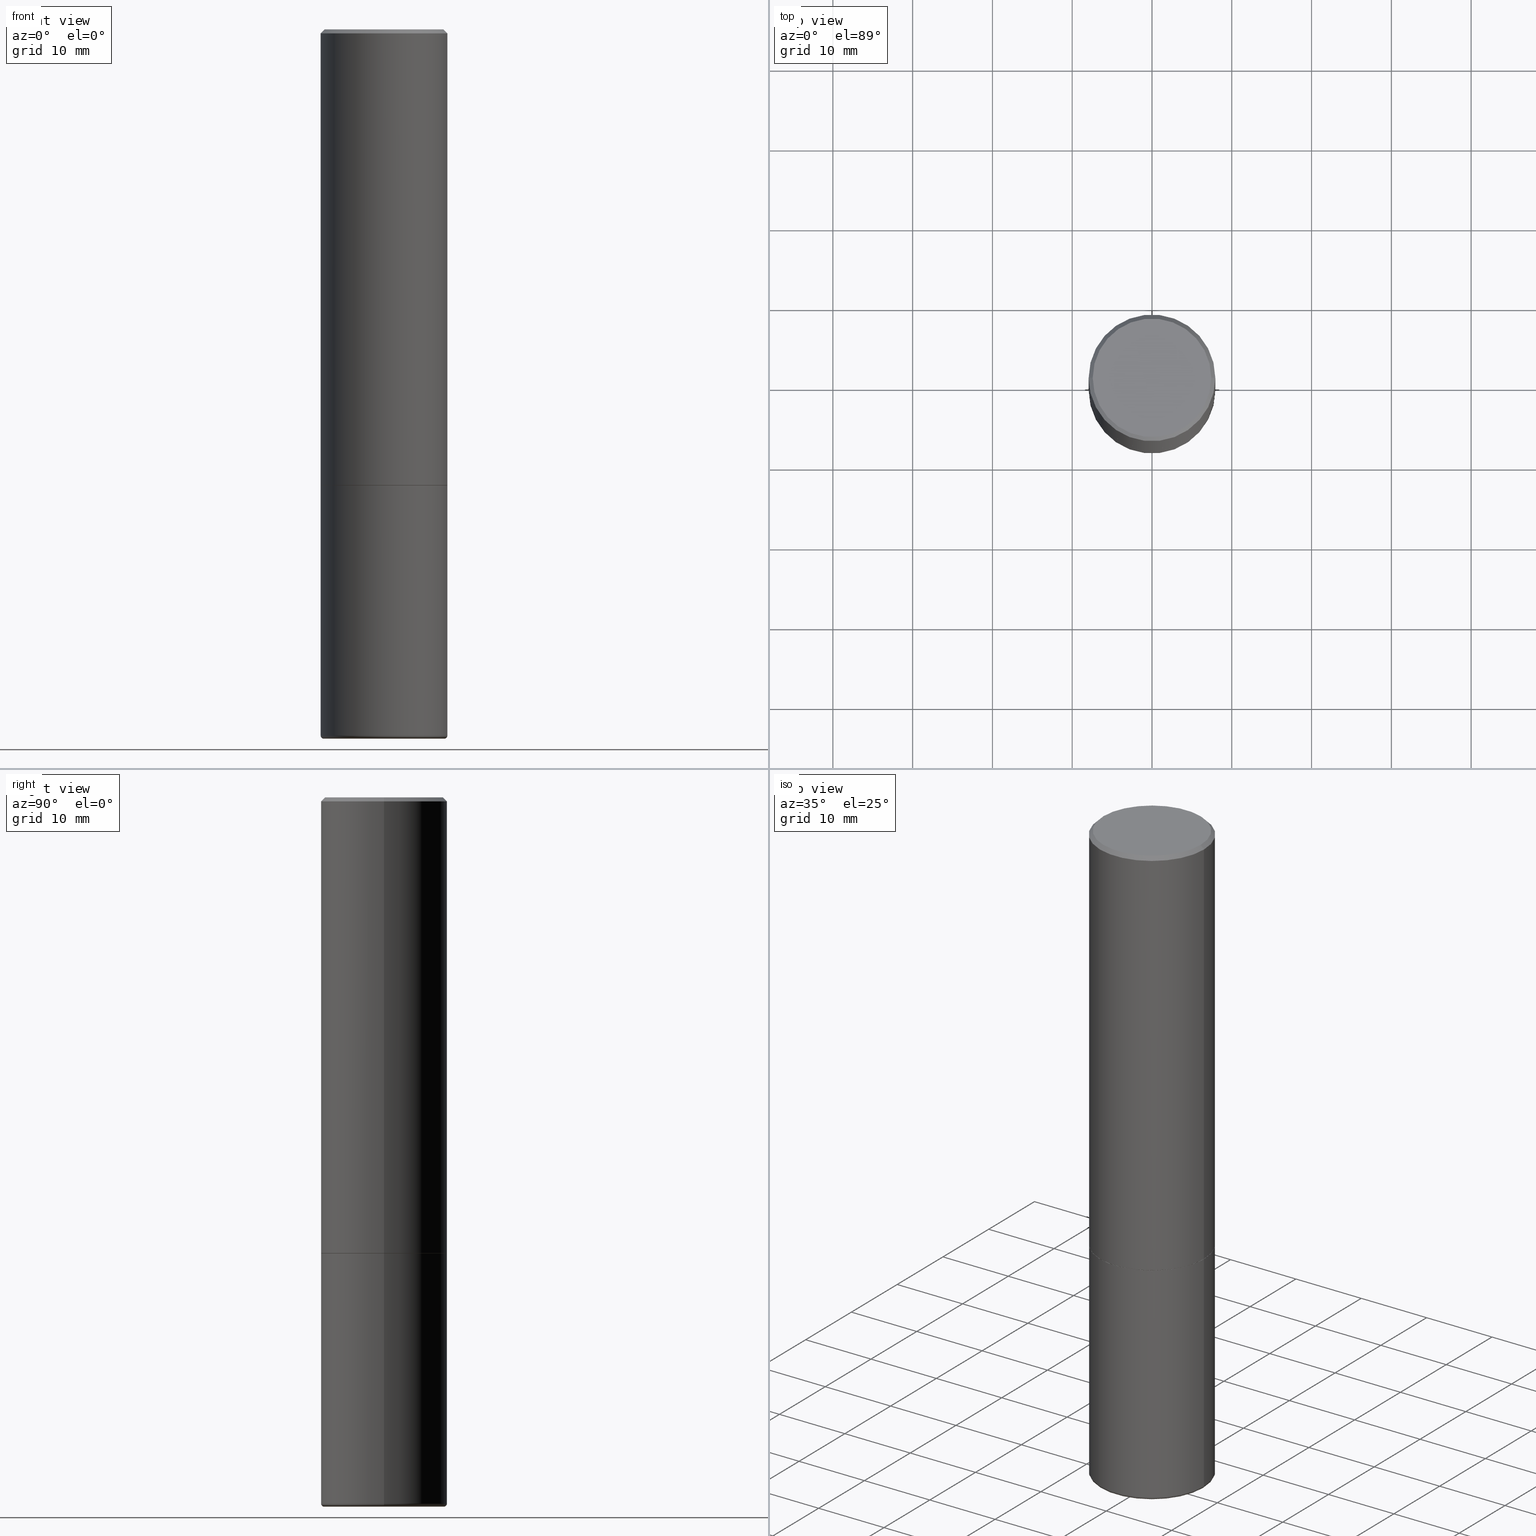
[diagram: canonical four-view strip — front | top / right | iso, engineering-drawing reading convention]
A machine part, canonical four-view strip (front | top / right | iso — engineering-drawing reading convention). The complete STEP part file that produces these views, byte-faithful:
ISO-10303-21;
HEADER;
FILE_DESCRIPTION (( 'STEP AP203' ),
    '1' );
FILE_NAME ('38074.STEP',
    '2023-03-22T20:15:38',
    ( '' ),
    ( '' ),
    'SwSTEP 2.0',
    'SolidWorks 2022',
    '' );
FILE_SCHEMA (( 'CONFIG_CONTROL_DESIGN' ));
ENDSEC;

DATA;
#1 = DIRECTION ( 'NONE',  ( 1.000000000000000000, -6.982962677686265133E-15, 0.000000000000000000 ) ) ;
#2 = DIRECTION ( 'NONE',  ( -1.000000000000000000, 7.105427357600985293E-15, 0.000000000000000000 ) ) ;
#3 = DATE_AND_TIME ( #387, #255 ) ;
#4 = ORIENTED_EDGE ( 'NONE', *, *, #256, .T. ) ;
#5 = EDGE_CURVE ( 'NONE', #153, #212, #435, .T. ) ;
#6 = CONICAL_SURFACE ( 'NONE', #415, 0.3114999999999999991, 0.7853981633972775267 ) ;
#7 = PERSON_AND_ORGANIZATION ( #359, #15 ) ;
#8 = EDGE_CURVE ( 'NONE', #421, #280, #297, .T. ) ;
#9 = ORIENTED_EDGE ( 'NONE', *, *, #36, .T. ) ;
#10 = VERTEX_POINT ( 'NONE', #127 ) ;
#11 = ADVANCED_FACE ( 'NONE', ( #264 ), #292, .T. ) ;
#12 = FACE_OUTER_BOUND ( 'NONE', #118, .T. ) ;
#13 = ORIENTED_EDGE ( 'NONE', *, *, #325, .F. ) ;
#14 = AXIS2_PLACEMENT_3D ( 'NONE', #185, #331, #193 ) ;
#15 = ORGANIZATION ( 'UNSPECIFIED', 'UNSPECIFIED', '' ) ;
#16 = DIRECTION ( 'NONE',  ( -2.445468806185136597E-29, 3.491481338843145583E-15, 1.000000000000000000 ) ) ;
#17 = ORIENTED_EDGE ( 'NONE', *, *, #404, .F. ) ;
#18 = CARTESIAN_POINT ( 'NONE',  ( -0.2924999999999998157, 2.077431396611662611E-15, 4.268512490086005323E-18 ) ) ;
#19 = PRODUCT_DEFINITION_SHAPE ( 'NONE', 'NONE',  #225 ) ;
#20 = CARTESIAN_POINT ( 'NONE',  ( -0.3125000000000000000, -1.740639529667232739E-15, -2.248999999999999222 ) ) ;
#21 = EDGE_CURVE ( 'NONE', #218, #153, #402, .T. ) ;
#22 = ORIENTED_EDGE ( 'NONE', *, *, #355, .T. ) ;
#23 = APPLICATION_CONTEXT ( 'configuration controlled 3d designs of mechanical parts and assemblies' ) ;
#24 = FACE_OUTER_BOUND ( 'NONE', #321, .T. ) ;
#25 = PLANE ( 'NONE',  #328 ) ;
#26 = CONICAL_SURFACE ( 'NONE', #284, 751.2258538476803551, 1.518436449235074592 ) ;
#27 = FACE_OUTER_BOUND ( 'NONE', #390, .T. ) ;
#28 = CARTESIAN_POINT ( 'NONE',  ( 5.502304813916556222E-29, -7.855833012397076871E-15, -2.249999999999999556 ) ) ;
#29 = CC_DESIGN_PERSON_AND_ORGANIZATION_ASSIGNMENT ( #203, #282, ( #225 ) ) ;
#30 = FACE_OUTER_BOUND ( 'NONE', #219, .T. ) ;
#31 = CARTESIAN_POINT ( 'NONE',  ( 5.502304813916556222E-29, -7.855833012397076871E-15, -2.249999999999999556 ) ) ;
#32 = ORIENTED_EDGE ( 'NONE', *, *, #66, .T. ) ;
#33 = DIRECTION ( 'NONE',  ( 1.000000000000000000, -6.982962677686265922E-15, 4.876176775795935793E-29 ) ) ;
#34 = CARTESIAN_POINT ( 'NONE',  ( 2.182175836777013173E-15, 0.3124999999999921729, -2.250000000000000444 ) ) ;
#35 = CARTESIAN_POINT ( 'NONE',  ( -0.3124999999999998335, 2.112346210000093866E-15, -0.02000000000000002123 ) ) ;
#36 = EDGE_CURVE ( 'NONE', #110, #280, #137, .T. ) ;
#37 = VECTOR ( 'NONE', #87, 39.37007874015748143 ) ;
#38 = CC_DESIGN_DATE_AND_TIME_ASSIGNMENT ( #411, #170, ( #205 ) ) ;
#39 = APPROVAL_DATE_TIME ( #144, #330 ) ;
#40 = APPLICATION_PROTOCOL_DEFINITION ( 'international standard', 'config_control_design', 1994, #23 ) ;
#41 = VERTEX_POINT ( 'NONE', #378 ) ;
#42 = CARTESIAN_POINT ( 'NONE',  ( 5.502304813916556222E-29, -7.855833012397076871E-15, -2.249999999999999556 ) ) ;
#43 = COORDINATED_UNIVERSAL_TIME_OFFSET ( 5, 0, .BEHIND. ) ;
#44 = VERTEX_POINT ( 'NONE', #278 ) ;
#45 = VECTOR ( 'NONE', #313, 39.37007874015748143 ) ;
#46 = AXIS2_PLACEMENT_3D ( 'NONE', #277, #100, #311 ) ;
#47 = PERSON_AND_ORGANIZATION ( #359, #15 ) ;
#48 = EDGE_LOOP ( 'NONE', ( #426, #440 ) ) ;
#49 = ORIENTED_EDGE ( 'NONE', *, *, #314, .T. ) ;
#50 = EDGE_LOOP ( 'NONE', ( #423, #360, #312, #324 ) ) ;
#51 = CARTESIAN_POINT ( 'NONE',  ( 0.000000000000000000, 0.000000000000000000, 0.000000000000000000 ) ) ;
#52 = ORIENTED_EDGE ( 'NONE', *, *, #256, .F. ) ;
#53 = CIRCLE ( 'NONE', #424, 0.2924999999999998157 ) ;
#54 = VECTOR ( 'NONE', #305, 39.37007874015748143 ) ;
#55 = CARTESIAN_POINT ( 'NONE',  ( -0.3125000000000002776, -7.791412577036125389E-15, -3.485020556978680073 ) ) ;
#56 = DIRECTION ( 'NONE',  ( 1.000000000000000000, -6.982962677686269077E-15, 0.000000000000000000 ) ) ;
#57 = CIRCLE ( 'NONE', #375, 0.3125000000000002776 ) ;
#58 = EDGE_CURVE ( 'NONE', #218, #419, #141, .T. ) ;
#59 = CARTESIAN_POINT ( 'NONE',  ( 1.047994128167879265E-27, -1.496257867800555549E-13, -42.85452856798943344 ) ) ;
#60 = CARTESIAN_POINT ( 'NONE',  ( 0.2974999999999999867, -1.424531563678747451E-14, -3.485020556978680517 ) ) ;
#61 = CYLINDRICAL_SURFACE ( 'NONE', #98, 0.3125000000000001665 ) ;
#62 = CC_DESIGN_PERSON_AND_ORGANIZATION_ASSIGNMENT ( #209, #242, ( #272 ) ) ;
#63 = DIRECTION ( 'NONE',  ( -2.445468806185136597E-29, 3.491481338843145583E-15, 1.000000000000000000 ) ) ;
#64 = LINE ( 'NONE', #307, #89 ) ;
#65 = CIRCLE ( 'NONE', #14, 0.2967149606563558861 ) ;
#66 = EDGE_CURVE ( 'NONE', #115, #421, #64, .T. ) ;
#67 = DIRECTION ( 'NONE',  ( 1.000000000000000000, -6.982962677686269077E-15, 0.000000000000000000 ) ) ;
#68 = ADVANCED_FACE ( 'NONE', ( #71 ), #61, .T. ) ;
#69 = FACE_OUTER_BOUND ( 'NONE', #169, .T. ) ;
#70 = DIRECTION ( 'NONE',  ( -2.445468806185136597E-29, 3.491481338843145583E-15, 1.000000000000000000 ) ) ;
#71 = FACE_OUTER_BOUND ( 'NONE', #288, .T. ) ;
#72 = SHAPE_DEFINITION_REPRESENTATION ( #19, #248 ) ;
#73 = TOROIDAL_SURFACE ( 'NONE', #204, 0.2974999999999999867, 0.01500000000000030996 ) ;
#74 = AXIS2_PLACEMENT_3D ( 'NONE', #60, #230, #270 ) ;
#75 = ORIENTED_EDGE ( 'NONE', *, *, #425, .T. ) ;
#76 = FACE_OUTER_BOUND ( 'NONE', #50, .T. ) ;
#77 = DATE_AND_TIME ( #238, #124 ) ;
#78 = DIRECTION ( 'NONE',  ( 1.000000000000000000, -6.982962677686266711E-15, 4.876176775795935232E-29 ) ) ;
#79 = APPROVAL_STATUS ( 'not_yet_approved' ) ;
#80 = ORIENTED_EDGE ( 'NONE', *, *, #273, .F. ) ;
#81 = VECTOR ( 'NONE', #274, 39.37007874015748143 ) ;
#82 = PERSON_AND_ORGANIZATION ( #359, #15 ) ;
#83 = ORIENTED_EDGE ( 'NONE', *, *, #239, .T. ) ;
#84 = ORIENTED_EDGE ( 'NONE', *, *, #386, .T. ) ;
#85 = EDGE_LOOP ( 'NONE', ( #358, #323, #295 ) ) ;
#86 = CC_DESIGN_PERSON_AND_ORGANIZATION_ASSIGNMENT ( #111, #349, ( #205 ) ) ;
#87 = DIRECTION ( 'NONE',  ( -0.7071067811864267805, 7.493145998869918709E-15, 0.7071067811866682540 ) ) ;
#88 = EDGE_LOOP ( 'NONE', ( #17, #351, #251, #91 ) ) ;
#89 = VECTOR ( 'NONE', #381, 39.37007874015748143 ) ;
#90 = DIRECTION ( 'NONE',  ( -2.445468806185136597E-29, 3.491481338843145583E-15, 1.000000000000000000 ) ) ;
#91 = ORIENTED_EDGE ( 'NONE', *, *, #386, .F. ) ;
#92 = CIRCLE ( 'NONE', #240, 0.3125000000000000000 ) ;
#93 = DIRECTION ( 'NONE',  ( -1.000000000000000000, 6.982962677686265922E-15, -4.876176775795935793E-29 ) ) ;
#94 = DIRECTION ( 'NONE',  ( -2.445468806185136597E-29, 3.491481338843145583E-15, 1.000000000000000000 ) ) ;
#95 = ORIENTED_EDGE ( 'NONE', *, *, #58, .F. ) ;
#96 = CLOSED_SHELL ( 'NONE', ( #191, #296, #11, #281, #275, #259, #97, #364 ) ) ;
#97 = ADVANCED_FACE ( 'NONE', ( #30 ), #438, .F. ) ;
#98 = AXIS2_PLACEMENT_3D ( 'NONE', #192, #234, #338 ) ;
#99 = LINE ( 'NONE', #126, #367 ) ;
#100 = DIRECTION ( 'NONE',  ( 2.445468806185136597E-29, -3.491481338843145583E-15, -1.000000000000000000 ) ) ;
#101 = APPROVAL_ROLE ( '' ) ;
#102 = EDGE_CURVE ( 'NONE', #210, #218, #223, .T. ) ;
#103 = DIRECTION ( 'NONE',  ( -2.445468806185136597E-29, 3.491481338843145583E-15, 1.000000000000000000 ) ) ;
#104 = APPROVAL_ROLE ( '' ) ;
#105 = AXIS2_PLACEMENT_3D ( 'NONE', #158, #132, #93 ) ;
#106 = LINE ( 'NONE', #286, #254 ) ;
#107 = COORDINATED_UNIVERSAL_TIME_OFFSET ( 5, 0, .BEHIND. ) ;
#108 = ORIENTED_EDGE ( 'NONE', *, *, #8, .F. ) ;
#109 = APPROVAL_STATUS ( 'not_yet_approved' ) ;
#110 = VERTEX_POINT ( 'NONE', #18 ) ;
#111 = PERSON_AND_ORGANIZATION ( #359, #15 ) ;
#112 = MANIFOLD_SOLID_BREP ( 'Body-Move/Copy2[1]', #352 ) ;
#113 = AXIS2_PLACEMENT_3D ( 'NONE', #257, #377, #379 ) ;
#114 = DIRECTION ( 'NONE',  ( 1.000000000000000000, -6.982962677686266711E-15, 4.876176775795935232E-29 ) ) ;
#115 = VERTEX_POINT ( 'NONE', #154 ) ;
#116 = CARTESIAN_POINT ( 'NONE',  ( 0.3124999999999998890, -2.182175836776957558E-15, 1.523805242436229235E-29 ) ) ;
#117 = DIRECTION ( 'NONE',  ( 1.000000000000000000, -6.982962677686265922E-15, 0.000000000000000000 ) ) ;
#118 = EDGE_LOOP ( 'NONE', ( #340, #49, #183, #293 ) ) ;
#119 = CONICAL_SURFACE ( 'NONE', #298, 0.3114999999999999991, 0.7853981633972775267 ) ;
#120 = CIRCLE ( 'NONE', #74, 0.01500000000000028394 ) ;
#121 = FACE_OUTER_BOUND ( 'NONE', #291, .T. ) ;
#122 =( LENGTH_UNIT ( ) NAMED_UNIT ( * ) SI_UNIT ( $, .METRE. ) );
#123 = CIRCLE ( 'NONE', #304, 0.3114999999999999991 ) ;
#124 = LOCAL_TIME ( 16, 15, 38.00000000000000000, #43 ) ;
#125 = CARTESIAN_POINT ( 'NONE',  ( 0.000000000000000000, 0.000000000000000000, 0.000000000000000000 ) ) ;
#126 = CARTESIAN_POINT ( 'NONE',  ( 0.3125000000000001665, -2.182175836776959530E-15, 1.523805242436230636E-29 ) ) ;
#127 = CARTESIAN_POINT ( 'NONE',  ( 0.3125000000000002776, -1.435006007695276788E-14, -3.485020556978680073 ) ) ;
#128 = DIRECTION ( 'NONE',  ( 1.000000000000000000, -6.982962677686269077E-15, 4.883557194083113462E-29 ) ) ;
#129 = LENGTH_MEASURE_WITH_UNIT ( LENGTH_MEASURE( 0.02539999999999999897 ), #122 );
#130 = EDGE_CURVE ( 'NONE', #44, #156, #133, .T. ) ;
#131 = APPROVAL ( #79, 'UNSPECIFIED' ) ;
#132 = DIRECTION ( 'NONE',  ( 2.438088387897960049E-29, -3.491481338843145188E-15, -1.000000000000000000 ) ) ;
#133 = CIRCLE ( 'NONE', #245, 0.3125000000000000000 ) ;
#134 = DIRECTION ( 'NONE',  ( 2.445468806185136597E-29, -3.491481338843145583E-15, -1.000000000000000000 ) ) ;
#135 = APPROVAL_PERSON_ORGANIZATION ( #7, #330, #104 ) ;
#136 = FACE_OUTER_BOUND ( 'NONE', #208, .T. ) ;
#137 = LINE ( 'NONE', #414, #81 ) ;
#138 = DIRECTION ( 'NONE',  ( 1.000000000000000000, -6.982962677686265922E-15, 0.000000000000000000 ) ) ;
#139 =( NAMED_UNIT ( * ) SI_UNIT ( $, .STERADIAN. ) SOLID_ANGLE_UNIT ( ) );
#140 = VERTEX_POINT ( 'NONE', #181 ) ;
#141 = CIRCLE ( 'NONE', #260, 0.2967149606563558861 ) ;
#142 = AXIS2_PLACEMENT_3D ( 'NONE', #302, #197, #263 ) ;
#143 = CALENDAR_DATE ( 2023, 22, 3 ) ;
#144 = DATE_AND_TIME ( #143, #389 ) ;
#145 = ORIENTED_EDGE ( 'NONE', *, *, #21, .T. ) ;
#146 = EDGE_CURVE ( 'NONE', #44, #421, #368, .T. ) ;
#147 = ORIENTED_EDGE ( 'NONE', *, *, #102, .F. ) ;
#148 = ORIENTED_EDGE ( 'NONE', *, *, #5, .T. ) ;
#149 = CARTESIAN_POINT ( 'NONE',  ( 8.518465690765155971E-29, -1.216968316402480975E-14, -3.484449827831947566 ) ) ;
#150 = AXIS2_PLACEMENT_3D ( 'NONE', #194, #333, #235 ) ;
#151 =( GEOMETRIC_REPRESENTATION_CONTEXT ( 3 ) GLOBAL_UNCERTAINTY_ASSIGNED_CONTEXT ( ( #361 ) ) GLOBAL_UNIT_ASSIGNED_CONTEXT ( ( #266, #320, #139 ) ) REPRESENTATION_CONTEXT ( 'NONE', 'WORKASPACE' ) );
#152 = ORIENTED_EDGE ( 'NONE', *, *, #160, .F. ) ;
#153 = VERTEX_POINT ( 'NONE', #55 ) ;
#154 = CARTESIAN_POINT ( 'NONE',  ( 0.2924999999999998157, -2.110215457714318748E-15, 4.268512490114932791E-18 ) ) ;
#155 = CARTESIAN_POINT ( 'NONE',  ( -1.043851414335219820E-46, 1.490343170380447200E-32, 4.268512490100411279E-18 ) ) ;
#156 = VERTEX_POINT ( 'NONE', #20 ) ;
#157 = DIRECTION ( 'NONE',  ( 1.000000000000000000, -6.982962677686269077E-15, 4.883557194083113462E-29 ) ) ;
#158 = CARTESIAN_POINT ( 'NONE',  ( 2.042516583223231356E-15, 0.2924999999999998157, -1.019124035366569212E-15 ) ) ;
#159 = AXIS2_PLACEMENT_3D ( 'NONE', #407, #199, #33 ) ;
#160 = EDGE_CURVE ( 'NONE', #10, #153, #57, .T. ) ;
#161 = CARTESIAN_POINT ( 'NONE',  ( 4.890937612370278413E-31, -6.982962677686297772E-17, -0.02000000000000002123 ) ) ;
#162 = CARTESIAN_POINT ( 'NONE',  ( -0.3124999999999998890, 2.220446049250312292E-15, -1.537167215704657391E-29 ) ) ;
#163 = CALENDAR_DATE ( 2023, 22, 3 ) ;
#164 = FACE_OUTER_BOUND ( 'NONE', #283, .T. ) ;
#165 = CIRCLE ( 'NONE', #186, 0.3125000000000002776 ) ;
#166 = CALENDAR_DATE ( 2023, 22, 3 ) ;
#167 = CARTESIAN_POINT ( 'NONE',  ( -0.2974999999999999867, -1.005401960128951079E-14, -3.485020556978680517 ) ) ;
#168 = MECHANICAL_CONTEXT ( 'NONE', #23, 'mechanical' ) ;
#169 = EDGE_LOOP ( 'NONE', ( #147, #83, #95 ) ) ;
#170 = DATE_TIME_ROLE ( 'classification_date' ) ;
#171 = ORIENTED_EDGE ( 'NONE', *, *, #21, .F. ) ;
#172 = CONICAL_SURFACE ( 'NONE', #46, 0.3124999999999998335, 0.7853981633974473908 ) ;
#173 = EDGE_CURVE ( 'NONE', #419, #218, #65, .T. ) ;
#174 = PERSON_AND_ORGANIZATION ( #359, #15 ) ;
#175 = EDGE_CURVE ( 'NONE', #110, #115, #345, .T. ) ;
#176 = ORIENTED_EDGE ( 'NONE', *, *, #224, .T. ) ;
#177 = ORIENTED_EDGE ( 'NONE', *, *, #36, .F. ) ;
#178 = ORIENTED_EDGE ( 'NONE', *, *, #175, .F. ) ;
#179 = LINE ( 'NONE', #220, #180 ) ;
#180 = VECTOR ( 'NONE', #365, 39.37007874015748854 ) ;
#181 = CARTESIAN_POINT ( 'NONE',  ( -0.3114999999999999991, -5.637193936156142396E-15, -2.249999999999999556 ) ) ;
#182 = CARTESIAN_POINT ( 'NONE',  ( -0.2967149606563558861, -1.002966813900966153E-14, -3.500000000000000000 ) ) ;
#183 = ORIENTED_EDGE ( 'NONE', *, *, #430, .T. ) ;
#184 = DIRECTION ( 'NONE',  ( -0.9986295347545742773, 6.790662755453670044E-15, -0.05233595624293597981 ) ) ;
#185 = CARTESIAN_POINT ( 'NONE',  ( 8.559140821647976968E-29, -1.222018468595100934E-14, -3.500000000000000000 ) ) ;
#186 = AXIS2_PLACEMENT_3D ( 'NONE', #439, #63, #303 ) ;
#187 = ADVANCED_FACE ( 'NONE', ( #121 ), #73, .T. ) ;
#188 = CC_DESIGN_PERSON_AND_ORGANIZATION_ASSIGNMENT ( #47, #279, ( #222 ) ) ;
#189 = DIRECTION ( 'NONE',  ( -2.445468806185136597E-29, 3.491481338843145583E-15, 1.000000000000000000 ) ) ;
#190 = CARTESIAN_POINT ( 'NONE',  ( 5.499859345110370619E-29, -7.852341531058232286E-15, -2.248999999999999222 ) ) ;
#191 = ADVANCED_FACE ( 'NONE', ( #27 ), #119, .T. ) ;
#192 = CARTESIAN_POINT ( 'NONE',  ( 0.000000000000000000, 0.000000000000000000, 0.000000000000000000 ) ) ;
#193 = DIRECTION ( 'NONE',  ( 1.000000000000000000, -6.982962677686265922E-15, 0.000000000000000000 ) ) ;
#194 = CARTESIAN_POINT ( 'NONE',  ( 5.502304813916556222E-29, -7.855833012397075293E-15, -2.249999999999999556 ) ) ;
#195 = AXIS2_PLACEMENT_3D ( 'NONE', #51, #253, #114 ) ;
#196 = DIRECTION ( 'NONE',  ( 1.000000000000000000, -6.982962677686265922E-15, 0.000000000000000000 ) ) ;
#197 = DIRECTION ( 'NONE',  ( -2.445468806185136597E-29, 3.491481338843145583E-15, 1.000000000000000000 ) ) ;
#198 = EDGE_LOOP ( 'NONE', ( #13, #32, #385, #177 ) ) ;
#199 = DIRECTION ( 'NONE',  ( -2.438088387897960049E-29, 3.491481338843145188E-15, 1.000000000000000000 ) ) ;
#200 = ADVANCED_FACE ( 'NONE', ( #12 ), #250, .T. ) ;
#201 = DIRECTION ( 'NONE',  ( 2.445468806185136597E-29, -3.491481338843145583E-15, -1.000000000000000000 ) ) ;
#202 = DIRECTION ( 'NONE',  ( -1.000000000000000000, 6.982962677686265133E-15, 0.000000000000000000 ) ) ;
#203 = PERSON_AND_ORGANIZATION ( #359, #15 ) ;
#204 = AXIS2_PLACEMENT_3D ( 'NONE', #306, #436, #128 ) ;
#205 = SECURITY_CLASSIFICATION ( '', '', #417 ) ;
#206 = CARTESIAN_POINT ( 'NONE',  ( 5.502304813916556222E-29, -7.855833012397075293E-15, -2.249999999999999556 ) ) ;
#207 = APPROVAL_DATE_TIME ( #383, #400 ) ;
#208 = EDGE_LOOP ( 'NONE', ( #348, #431, #108, #301 ) ) ;
#209 = PERSON_AND_ORGANIZATION ( #359, #15 ) ;
#210 = VERTEX_POINT ( 'NONE', #149 ) ;
#211 = APPROVAL_DATE_TIME ( #3, #131 ) ;
#212 = VERTEX_POINT ( 'NONE', #392 ) ;
#213 = AXIS2_PLACEMENT_3D ( 'NONE', #161, #268, #1 ) ;
#214 = AXIS2_PLACEMENT_3D ( 'NONE', #341, #134, #202 ) ;
#215 = CC_DESIGN_APPROVAL ( #400, ( #205 ) ) ;
#216 = APPLICATION_PROTOCOL_DEFINITION ( 'international standard', 'config_control_design', 1994, #267 ) ;
#217 = ORIENTED_EDGE ( 'NONE', *, *, #425, .F. ) ;
#218 = VERTEX_POINT ( 'NONE', #182 ) ;
#219 = EDGE_LOOP ( 'NONE', ( #294, #247 ) ) ;
#220 = CARTESIAN_POINT ( 'NONE',  ( 3.791614014439913995E-18, -1.216589155001045545E-14, -3.484449827831947566 ) ) ;
#221 = CIRCLE ( 'NONE', #335, 0.3114999999999999991 ) ;
#222 = PRODUCT ( '38074', '38074', '', ( #168 ) ) ;
#223 = LINE ( 'NONE', #393, #428 ) ;
#224 = EDGE_CURVE ( 'NONE', #140, #156, #391, .T. ) ;
#225 = PRODUCT_DEFINITION ( 'UNKNOWN', '', #272, #285 ) ;
#226 = AXIS2_PLACEMENT_3D ( 'NONE', #206, #103, #347 ) ;
#227 = FACE_OUTER_BOUND ( 'NONE', #48, .T. ) ;
#228 = DIRECTION ( 'NONE',  ( -2.445468806185136597E-29, 3.491481338843145583E-15, 1.000000000000000000 ) ) ;
#229 = DIRECTION ( 'NONE',  ( -2.445468806185136597E-29, 3.491481338843145583E-15, 1.000000000000000000 ) ) ;
#230 = DIRECTION ( 'NONE',  ( -6.982962677686266711E-15, -1.000000000000000000, 3.491481338843145583E-15 ) ) ;
#231 = ORIENTED_EDGE ( 'NONE', *, *, #314, .F. ) ;
#232 = CARTESIAN_POINT ( 'NONE',  ( 8.559140821647976968E-29, -1.222018468595100934E-14, -3.500000000000000000 ) ) ;
#233 = DIRECTION ( 'NONE',  ( -2.445468806185136597E-29, 3.491481338843145583E-15, 1.000000000000000000 ) ) ;
#234 = DIRECTION ( 'NONE',  ( -2.445468806185136597E-29, 3.491481338843145583E-15, 1.000000000000000000 ) ) ;
#235 = DIRECTION ( 'NONE',  ( 1.000000000000000000, -6.982962677686265133E-15, 0.000000000000000000 ) ) ;
#236 = COORDINATED_UNIVERSAL_TIME_OFFSET ( 5, 0, .BEHIND. ) ;
#237 = FACE_OUTER_BOUND ( 'NONE', #88, .T. ) ;
#238 = CALENDAR_DATE ( 2023, 22, 3 ) ;
#239 = EDGE_CURVE ( 'NONE', #210, #419, #179, .T. ) ;
#240 = AXIS2_PLACEMENT_3D ( 'NONE', #190, #94, #67 ) ;
#241 = DIRECTION ( 'NONE',  ( 0.7071067811864267805, -2.468850131080992517E-15, 0.7071067811866682540 ) ) ;
#242 = PERSON_AND_ORGANIZATION_ROLE ( 'creator' ) ;
#243 = ORIENTED_EDGE ( 'NONE', *, *, #173, .T. ) ;
#244 = COORDINATED_UNIVERSAL_TIME_OFFSET ( 5, 0, .BEHIND. ) ;
#245 = AXIS2_PLACEMENT_3D ( 'NONE', #397, #90, #56 ) ;
#246 = LOCAL_TIME ( 16, 15, 38.00000000000000000, #236 ) ;
#247 = ORIENTED_EDGE ( 'NONE', *, *, #382, .F. ) ;
#248 = ADVANCED_BREP_SHAPE_REPRESENTATION ( '38074', ( #112, #408, #418 ), #151 ) ;
#249 = VERTEX_POINT ( 'NONE', #416 ) ;
#250 = CYLINDRICAL_SURFACE ( 'NONE', #195, 0.3125000000000001665 ) ;
#251 = ORIENTED_EDGE ( 'NONE', *, *, #146, .T. ) ;
#252 = DIRECTION ( 'NONE',  ( -2.445468806185136877E-29, 3.491481338843145188E-15, 1.000000000000000000 ) ) ;
#253 = DIRECTION ( 'NONE',  ( -2.445468806185136597E-29, 3.491481338843145583E-15, 1.000000000000000000 ) ) ;
#254 = VECTOR ( 'NONE', #241, 39.37007874015748143 ) ;
#255 = LOCAL_TIME ( 16, 15, 38.00000000000000000, #420 ) ;
#256 = EDGE_CURVE ( 'NONE', #41, #212, #384, .T. ) ;
#257 = CARTESIAN_POINT ( 'NONE',  ( 1.047994128167879265E-27, -1.496257867800555549E-13, -42.85452856798943344 ) ) ;
#258 = CYLINDRICAL_SURFACE ( 'NONE', #271, 0.3124999999999998890 ) ;
#259 = ADVANCED_FACE ( 'NONE', ( #76 ), #6, .T. ) ;
#260 = AXIS2_PLACEMENT_3D ( 'NONE', #232, #229, #196 ) ;
#261 = CC_DESIGN_APPROVAL ( #131, ( #225 ) ) ;
#262 = FACE_OUTER_BOUND ( 'NONE', #327, .T. ) ;
#263 = DIRECTION ( 'NONE',  ( 1.000000000000000000, -6.982962677686265133E-15, 0.000000000000000000 ) ) ;
#264 = FACE_OUTER_BOUND ( 'NONE', #198, .T. ) ;
#265 = CARTESIAN_POINT ( 'NONE',  ( 5.502304813916556222E-29, -7.855833012397076871E-15, -2.249999999999999556 ) ) ;
#266 =( CONVERSION_BASED_UNIT ( 'INCH', #129 ) LENGTH_UNIT ( ) NAMED_UNIT ( #353 ) );
#267 = APPLICATION_CONTEXT ( 'configuration controlled 3d designs of mechanical parts and assemblies' ) ;
#268 = DIRECTION ( 'NONE',  ( -2.445468806185136597E-29, 3.491481338843145583E-15, 1.000000000000000000 ) ) ;
#269 = CIRCLE ( 'NONE', #142, 0.3124999999999998335 ) ;
#270 = DIRECTION ( 'NONE',  ( 1.000000000000000000, -6.982962677686265133E-15, 0.000000000000000000 ) ) ;
#271 = AXIS2_PLACEMENT_3D ( 'NONE', #125, #401, #78 ) ;
#272 = PRODUCT_DEFINITION_FORMATION_WITH_SPECIFIED_SOURCE ( 'ANY', '', #222, .NOT_KNOWN. ) ;
#273 = EDGE_CURVE ( 'NONE', #249, #44, #106, .T. ) ;
#274 = DIRECTION ( 'NONE',  ( -0.7071067811865469066, 2.468850131082250355E-15, -0.7071067811865481278 ) ) ;
#275 = ADVANCED_FACE ( 'NONE', ( #237 ), #380, .T. ) ;
#276 = DIRECTION ( 'NONE',  ( 0.000000000000000000, 0.000000000000000000, 1.000000000000000000 ) ) ;
#277 = CARTESIAN_POINT ( 'NONE',  ( 4.890937612370278413E-31, -6.982962677686297772E-17, -0.02000000000000002123 ) ) ;
#278 = CARTESIAN_POINT ( 'NONE',  ( 0.3125000000000000000, -1.003451736783519063E-14, -2.248999999999999222 ) ) ;
#279 = PERSON_AND_ORGANIZATION_ROLE ( 'design_owner' ) ;
#280 = VERTEX_POINT ( 'NONE', #35 ) ;
#281 = ADVANCED_FACE ( 'NONE', ( #164 ), #172, .T. ) ;
#282 = PERSON_AND_ORGANIZATION_ROLE ( 'creator' ) ;
#283 = EDGE_LOOP ( 'NONE', ( #299, #178, #9, #84 ) ) ;
#284 = AXIS2_PLACEMENT_3D ( 'NONE', #59, #201, #343 ) ;
#285 = DESIGN_CONTEXT ( 'detailed design', #267, 'design' ) ;
#286 = CARTESIAN_POINT ( 'NONE',  ( 0.3114999999999999991, -1.003102588649634920E-14, -2.249999999999999556 ) ) ;
#287 = DIRECTION ( 'NONE',  ( 1.000000000000000000, 0.000000000000000000, 0.000000000000000000 ) ) ;
#288 = EDGE_LOOP ( 'NONE', ( #290, #148, #52, #318 ) ) ;
#289 = DATE_TIME_ROLE ( 'creation_date' ) ;
#290 = ORIENTED_EDGE ( 'NONE', *, *, #160, .T. ) ;
#291 = EDGE_LOOP ( 'NONE', ( #243, #145, #152, #217 ) ) ;
#292 = CONICAL_SURFACE ( 'NONE', #214, 0.3124999999999998335, 0.7853981633974473908 ) ;
#293 = ORIENTED_EDGE ( 'NONE', *, *, #309, .F. ) ;
#294 = ORIENTED_EDGE ( 'NONE', *, *, #355, .F. ) ;
#295 = ORIENTED_EDGE ( 'NONE', *, *, #173, .F. ) ;
#296 = ADVANCED_FACE ( 'NONE', ( #136 ), #258, .T. ) ;
#297 = CIRCLE ( 'NONE', #213, 0.3124999999999998335 ) ;
#298 = AXIS2_PLACEMENT_3D ( 'NONE', #265, #16, #117 ) ;
#299 = ORIENTED_EDGE ( 'NONE', *, *, #66, .F. ) ;
#300 = DIRECTION ( 'NONE',  ( -2.445468806185136597E-29, 3.491481338843145583E-15, 1.000000000000000000 ) ) ;
#301 = ORIENTED_EDGE ( 'NONE', *, *, #146, .F. ) ;
#302 = CARTESIAN_POINT ( 'NONE',  ( 4.890937612370278413E-31, -6.982962677686297772E-17, -0.02000000000000002123 ) ) ;
#303 = DIRECTION ( 'NONE',  ( 1.000000000000000000, -6.982962677686269077E-15, 0.000000000000000000 ) ) ;
#304 = AXIS2_PLACEMENT_3D ( 'NONE', #28, #228, #437 ) ;
#305 = DIRECTION ( 'NONE',  ( -2.445468806185136877E-29, 3.491481338843145188E-15, 1.000000000000000000 ) ) ;
#306 = CARTESIAN_POINT ( 'NONE',  ( 8.522509061005313517E-29, -1.216788424017580796E-14, -3.485020556978680517 ) ) ;
#307 = CARTESIAN_POINT ( 'NONE',  ( 0.3124999999999998335, -2.213735251080465334E-15, -0.02000000000000002123 ) ) ;
#308 = CARTESIAN_POINT ( 'NONE',  ( -1.043851414335219820E-46, 1.490343170380447200E-32, 4.268512490100411279E-18 ) ) ;
#309 = EDGE_CURVE ( 'NONE', #212, #41, #441, .T. ) ;
#310 = CONICAL_SURFACE ( 'NONE', #113, 751.2258538476803551, 1.518436449235074592 ) ;
#311 = DIRECTION ( 'NONE',  ( -1.000000000000000000, 6.982962677686265133E-15, 0.000000000000000000 ) ) ;
#312 = ORIENTED_EDGE ( 'NONE', *, *, #273, .T. ) ;
#313 = DIRECTION ( 'NONE',  ( -2.445468806185136877E-29, 3.491481338843145188E-15, 1.000000000000000000 ) ) ;
#314 = EDGE_CURVE ( 'NONE', #153, #10, #165, .T. ) ;
#315 = DIRECTION ( 'NONE',  ( -2.445468806185136597E-29, 3.491481338843145583E-15, 1.000000000000000000 ) ) ;
#316 = APPROVAL_STATUS ( 'not_yet_approved' ) ;
#317 = ORIENTED_EDGE ( 'NONE', *, *, #130, .F. ) ;
#318 = ORIENTED_EDGE ( 'NONE', *, *, #430, .F. ) ;
#319 = VECTOR ( 'NONE', #252, 39.37007874015748143 ) ;
#320 =( NAMED_UNIT ( * ) PLANE_ANGLE_UNIT ( ) SI_UNIT ( $, .RADIAN. ) );
#321 = EDGE_LOOP ( 'NONE', ( #171, #332, #75, #231 ) ) ;
#322 = EDGE_CURVE ( 'NONE', #156, #44, #92, .T. ) ;
#323 = ORIENTED_EDGE ( 'NONE', *, *, #102, .T. ) ;
#324 = ORIENTED_EDGE ( 'NONE', *, *, #322, .F. ) ;
#325 = EDGE_CURVE ( 'NONE', #115, #110, #53, .T. ) ;
#326 = PRODUCT_RELATED_PRODUCT_CATEGORY ( 'detail', '', ( #222 ) ) ;
#327 = EDGE_LOOP ( 'NONE', ( #4, #363 ) ) ;
#328 = AXIS2_PLACEMENT_3D ( 'NONE', #34, #373, #434 ) ;
#329 = ADVANCED_FACE ( 'NONE', ( #262 ), #25, .F. ) ;
#330 = APPROVAL ( #109, 'UNSPECIFIED' ) ;
#331 = DIRECTION ( 'NONE',  ( -2.445468806185136597E-29, 3.491481338843145583E-15, 1.000000000000000000 ) ) ;
#332 = ORIENTED_EDGE ( 'NONE', *, *, #58, .T. ) ;
#333 = DIRECTION ( 'NONE',  ( -2.445468806185136597E-29, 3.491481338843145583E-15, 1.000000000000000000 ) ) ;
#334 = CARTESIAN_POINT ( 'NONE',  ( 0.3124999999999998335, -2.213735251080465334E-15, -0.02000000000000002123 ) ) ;
#335 = AXIS2_PLACEMENT_3D ( 'NONE', #31, #233, #374 ) ;
#336 = APPROVAL_PERSON_ORGANIZATION ( #82, #400, #356 ) ;
#337 = DIRECTION ( 'NONE',  ( -2.445468806185136597E-29, 3.491481338843145583E-15, 1.000000000000000000 ) ) ;
#338 = DIRECTION ( 'NONE',  ( 1.000000000000000000, -6.982962677686266711E-15, 4.876176775795935232E-29 ) ) ;
#339 = DIRECTION ( 'NONE',  ( 1.000000000000000000, -6.982962677686266711E-15, 4.876067333457692840E-29 ) ) ;
#340 = ORIENTED_EDGE ( 'NONE', *, *, #5, .F. ) ;
#341 = CARTESIAN_POINT ( 'NONE',  ( 4.890937612370278413E-31, -6.982962677686297772E-17, -0.02000000000000002123 ) ) ;
#342 = CC_DESIGN_PERSON_AND_ORGANIZATION_ASSIGNMENT ( #174, #422, ( #272 ) ) ;
#343 = DIRECTION ( 'NONE',  ( -1.000000000000000000, 6.982962677686266711E-15, 0.000000000000000000 ) ) ;
#344 = DIRECTION ( 'NONE',  ( 1.000000000000000000, -6.982962677686266711E-15, 4.876176775795935232E-29 ) ) ;
#345 = CIRCLE ( 'NONE', #388, 0.2924999999999998157 ) ;
#346 = AXIS2_PLACEMENT_3D ( 'NONE', #432, #189, #157 ) ;
#347 = DIRECTION ( 'NONE',  ( 1.000000000000000000, -6.982962677686265133E-15, 0.000000000000000000 ) ) ;
#348 = ORIENTED_EDGE ( 'NONE', *, *, #130, .T. ) ;
#349 = PERSON_AND_ORGANIZATION_ROLE ( 'classification_officer' ) ;
#350 = CARTESIAN_POINT ( 'NONE',  ( 0.000000000000000000, 0.000000000000000000, 0.000000000000000000 ) ) ;
#351 = ORIENTED_EDGE ( 'NONE', *, *, #322, .T. ) ;
#352 = CLOSED_SHELL ( 'NONE', ( #370, #187, #68, #329, #200, #398, #357 ) ) ;
#353 = DIMENSIONAL_EXPONENTS ( 1.000000000000000000, 0.000000000000000000, 0.000000000000000000, 0.000000000000000000, 0.000000000000000000, 0.000000000000000000, 0.000000000000000000 ) ;
#354 = LOCAL_TIME ( 16, 15, 38.00000000000000000, #244 ) ;
#355 = EDGE_CURVE ( 'NONE', #249, #140, #123, .T. ) ;
#356 = APPROVAL_ROLE ( '' ) ;
#357 = ADVANCED_FACE ( 'NONE', ( #403 ), #310, .F. ) ;
#358 = ORIENTED_EDGE ( 'NONE', *, *, #239, .F. ) ;
#359 = PERSON ( 'UNSPECIFIED', 'UNSPECIFIED', 'UNSPECIFIED', ('UNSPECIFIED'), ('UNSPECIFIED'), ('UNSPECIFIED') ) ;
#360 = ORIENTED_EDGE ( 'NONE', *, *, #382, .T. ) ;
#361 = UNCERTAINTY_MEASURE_WITH_UNIT (LENGTH_MEASURE( 1.000000000000000082E-05 ), #266, 'distance_accuracy_value', 'NONE');
#362 = CARTESIAN_POINT ( 'NONE',  ( -0.3114999999999999991, -5.642492390504364798E-15, -2.249999999999999556 ) ) ;
#363 = ORIENTED_EDGE ( 'NONE', *, *, #309, .T. ) ;
#364 = ADVANCED_FACE ( 'NONE', ( #227 ), #409, .F. ) ;
#365 = DIRECTION ( 'NONE',  ( 0.9986295347545742773, -7.033825938271996334E-15, -0.05233595624293597981 ) ) ;
#366 = AXIS2_PLACEMENT_3D ( 'NONE', #167, #406, #2 ) ;
#367 = VECTOR ( 'NONE', #399, 39.37007874015748143 ) ;
#368 = LINE ( 'NONE', #116, #319 ) ;
#369 = DIRECTION ( 'NONE',  ( -2.445468806185136597E-29, 3.491481338843145583E-15, 1.000000000000000000 ) ) ;
#370 = ADVANCED_FACE ( 'NONE', ( #69 ), #26, .F. ) ;
#371 = AXIS2_PLACEMENT_3D ( 'NONE', #410, #70, #344 ) ;
#372 = TOROIDAL_SURFACE ( 'NONE', #346, 0.2974999999999999867, 0.01500000000000030996 ) ;
#373 = DIRECTION ( 'NONE',  ( 2.438088387897960049E-29, -3.491481338843145188E-15, -1.000000000000000000 ) ) ;
#374 = DIRECTION ( 'NONE',  ( 1.000000000000000000, -6.982962677686265922E-15, 0.000000000000000000 ) ) ;
#375 = AXIS2_PLACEMENT_3D ( 'NONE', #427, #369, #396 ) ;
#376 = CC_DESIGN_APPROVAL ( #330, ( #272 ) ) ;
#377 = DIRECTION ( 'NONE',  ( 2.445468806185136597E-29, -3.491481338843145583E-15, -1.000000000000000000 ) ) ;
#378 = CARTESIAN_POINT ( 'NONE',  ( 0.3125000000000000000, -1.003800884917403364E-14, -2.249999999999999556 ) ) ;
#379 = DIRECTION ( 'NONE',  ( -1.000000000000000000, 6.982962677686266711E-15, 0.000000000000000000 ) ) ;
#380 = CYLINDRICAL_SURFACE ( 'NONE', #371, 0.3124999999999998890 ) ;
#381 = DIRECTION ( 'NONE',  ( 0.7071067811865469066, -7.319954787623254468E-15, -0.7071067811865481278 ) ) ;
#382 = EDGE_CURVE ( 'NONE', #140, #249, #221, .T. ) ;
#383 = DATE_AND_TIME ( #163, #246 ) ;
#384 = CIRCLE ( 'NONE', #226, 0.3125000000000000000 ) ;
#385 = ORIENTED_EDGE ( 'NONE', *, *, #8, .T. ) ;
#386 = EDGE_CURVE ( 'NONE', #280, #421, #269, .T. ) ;
#387 = CALENDAR_DATE ( 2023, 22, 3 ) ;
#388 = AXIS2_PLACEMENT_3D ( 'NONE', #155, #300, #429 ) ;
#389 = LOCAL_TIME ( 16, 15, 38.00000000000000000, #107 ) ;
#390 = EDGE_LOOP ( 'NONE', ( #22, #176, #317, #80 ) ) ;
#391 = LINE ( 'NONE', #362, #37 ) ;
#392 = CARTESIAN_POINT ( 'NONE',  ( -0.3125000000000000000, -7.791412577036126966E-15, -2.249999999999999556 ) ) ;
#393 = CARTESIAN_POINT ( 'NONE',  ( -3.791614014269492307E-18, -1.216589155001045545E-14, -3.484449827831947566 ) ) ;
#394 = CC_DESIGN_SECURITY_CLASSIFICATION ( #205, ( #272 ) ) ;
#395 = CC_DESIGN_DATE_AND_TIME_ASSIGNMENT ( #77, #289, ( #225 ) ) ;
#396 = DIRECTION ( 'NONE',  ( 1.000000000000000000, -6.982962677686269077E-15, 0.000000000000000000 ) ) ;
#397 = CARTESIAN_POINT ( 'NONE',  ( 5.499859345110370619E-29, -7.852341531058232286E-15, -2.248999999999999222 ) ) ;
#398 = ADVANCED_FACE ( 'NONE', ( #24 ), #372, .T. ) ;
#399 = DIRECTION ( 'NONE',  ( -2.445468806185136877E-29, 3.491481338843145188E-15, 1.000000000000000000 ) ) ;
#400 = APPROVAL ( #316, 'UNSPECIFIED' ) ;
#401 = DIRECTION ( 'NONE',  ( -2.445468806185136597E-29, 3.491481338843145583E-15, 1.000000000000000000 ) ) ;
#402 = CIRCLE ( 'NONE', #366, 0.01500000000000028394 ) ;
#403 = FACE_OUTER_BOUND ( 'NONE', #85, .T. ) ;
#404 = EDGE_CURVE ( 'NONE', #156, #280, #405, .T. ) ;
#405 = LINE ( 'NONE', #162, #54 ) ;
#406 = DIRECTION ( 'NONE',  ( 7.105427357601001859E-15, 1.000000000000000000, -3.491481338843145583E-15 ) ) ;
#407 = CARTESIAN_POINT ( 'NONE',  ( 5.502304813916556222E-29, -7.855833012397076871E-15, -2.249999999999999556 ) ) ;
#408 = MANIFOLD_SOLID_BREP ( 'Body-Move/Copy2[2]', #96 ) ;
#409 = PLANE ( 'NONE',  #105 ) ;
#410 = CARTESIAN_POINT ( 'NONE',  ( 0.000000000000000000, 0.000000000000000000, 0.000000000000000000 ) ) ;
#411 = DATE_AND_TIME ( #166, #354 ) ;
#412 = CARTESIAN_POINT ( 'NONE',  ( -0.3125000000000001665, 2.220446049250314264E-15, -1.537167215704658792E-29 ) ) ;
#413 = PERSON_AND_ORGANIZATION ( #359, #15 ) ;
#414 = CARTESIAN_POINT ( 'NONE',  ( -0.3124999999999998335, 2.112346210000093866E-15, -0.02000000000000002123 ) ) ;
#415 = AXIS2_PLACEMENT_3D ( 'NONE', #42, #315, #138 ) ;
#416 = CARTESIAN_POINT ( 'NONE',  ( 0.3114999999999999991, -1.003102588649634920E-14, -2.249999999999999556 ) ) ;
#417 = SECURITY_CLASSIFICATION_LEVEL ( 'unclassified' ) ;
#418 = AXIS2_PLACEMENT_3D ( 'NONE', #350, #276, #287 ) ;
#419 = VERTEX_POINT ( 'NONE', #433 ) ;
#420 = COORDINATED_UNIVERSAL_TIME_OFFSET ( 5, 0, .BEHIND. ) ;
#421 = VERTEX_POINT ( 'NONE', #334 ) ;
#422 = PERSON_AND_ORGANIZATION_ROLE ( 'design_supplier' ) ;
#423 = ORIENTED_EDGE ( 'NONE', *, *, #224, .F. ) ;
#424 = AXIS2_PLACEMENT_3D ( 'NONE', #308, #337, #339 ) ;
#425 = EDGE_CURVE ( 'NONE', #419, #10, #120, .T. ) ;
#426 = ORIENTED_EDGE ( 'NONE', *, *, #175, .T. ) ;
#427 = CARTESIAN_POINT ( 'NONE',  ( 8.522509061005312396E-29, -1.216788424017580638E-14, -3.485020556978680073 ) ) ;
#428 = VECTOR ( 'NONE', #184, 39.37007874015748854 ) ;
#429 = DIRECTION ( 'NONE',  ( 1.000000000000000000, -6.982962677686266711E-15, 4.876067333457692840E-29 ) ) ;
#430 = EDGE_CURVE ( 'NONE', #10, #41, #99, .T. ) ;
#431 = ORIENTED_EDGE ( 'NONE', *, *, #404, .T. ) ;
#432 = CARTESIAN_POINT ( 'NONE',  ( 8.522509061005313517E-29, -1.216788424017580796E-14, -3.485020556978680517 ) ) ;
#433 = CARTESIAN_POINT ( 'NONE',  ( 0.2967149606563558861, -1.429213418212549008E-14, -3.500000000000000000 ) ) ;
#434 = DIRECTION ( 'NONE',  ( -1.000000000000000000, 6.982962677686265922E-15, -4.876176775795935793E-29 ) ) ;
#435 = LINE ( 'NONE', #412, #45 ) ;
#436 = DIRECTION ( 'NONE',  ( -2.445468806185136597E-29, 3.491481338843145583E-15, 1.000000000000000000 ) ) ;
#437 = DIRECTION ( 'NONE',  ( 1.000000000000000000, -6.982962677686265922E-15, 0.000000000000000000 ) ) ;
#438 = PLANE ( 'NONE',  #159 ) ;
#439 = CARTESIAN_POINT ( 'NONE',  ( 8.522509061005312396E-29, -1.216788424017580638E-14, -3.485020556978680073 ) ) ;
#440 = ORIENTED_EDGE ( 'NONE', *, *, #325, .T. ) ;
#441 = CIRCLE ( 'NONE', #150, 0.3125000000000000000 ) ;
#442 = APPROVAL_PERSON_ORGANIZATION ( #413, #131, #101 ) ;
ENDSEC;
END-ISO-10303-21;
